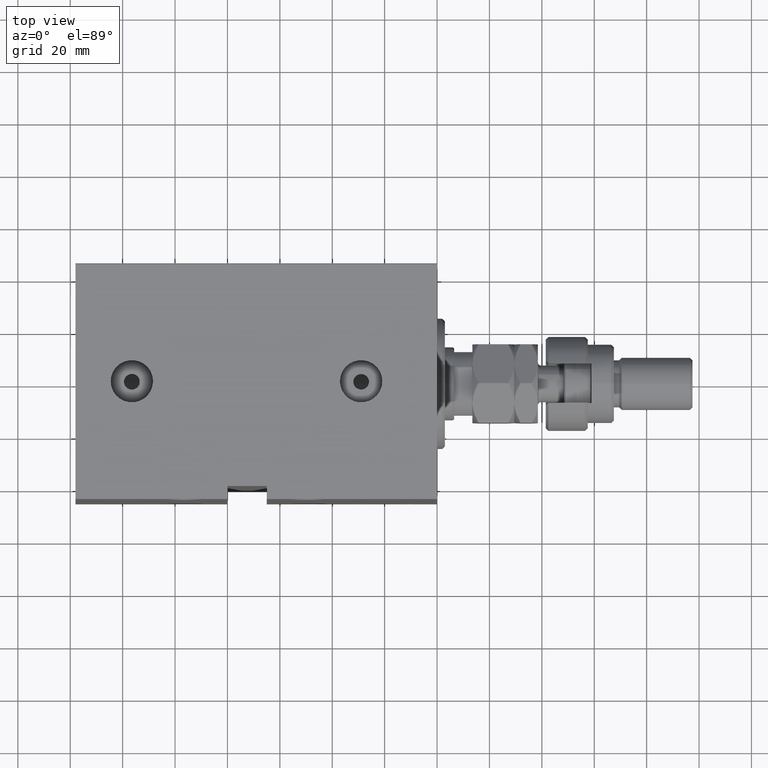
[diagram: clean part render]
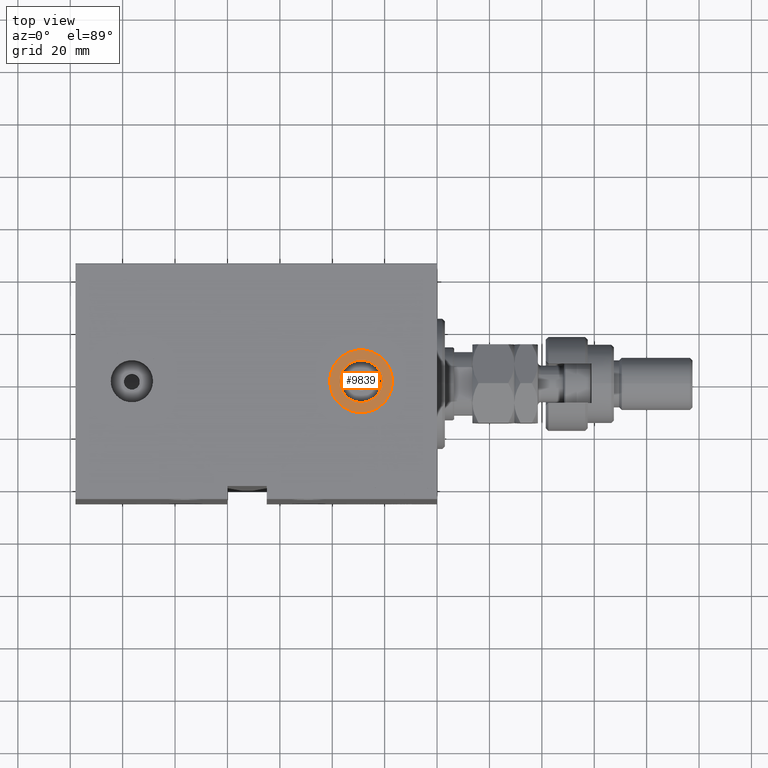
[diagram: same view with one face highlighted and labeled with its STEP entity id]
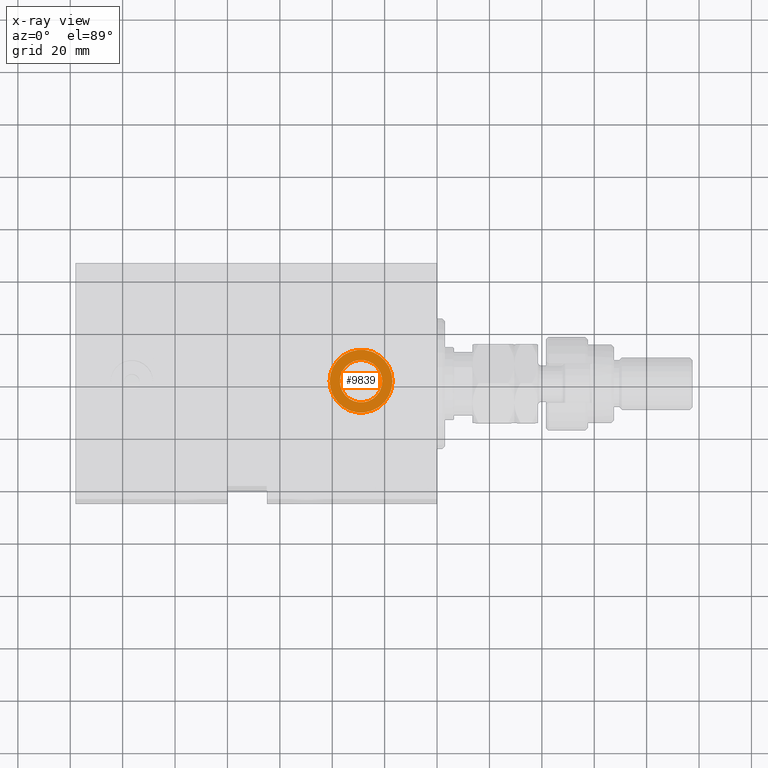
[diagram: x-ray of the same camera — body ghosted, the highlighted face saturated]
A machine part, top view. The second image highlights one B-rep face of the part: STEP entity #9839.
The next image is the same camera in x-ray: the body ghosted, the highlighted face saturated — about 0% of this face is hidden behind the body in this view.
In plain terms, the highlighted planar face has unit normal (0, 0, 1).
Its self-contained STEP definition (entity closure, byte-faithful):
#631 = AXIS2_PLACEMENT_3D ( 'NONE', #34391, #11951, #1426 ) ;
#1426 = DIRECTION ( 'NONE',  ( 1.000000000000000000, 0.000000000000000000, 0.000000000000000000 ) ) ;
#3957 = FACE_OUTER_BOUND ( 'NONE', #44099, .T. ) ;
#4660 = FACE_BOUND ( 'NONE', #24547, .T. ) ;
#4786 = ORIENTED_EDGE ( 'NONE', *, *, #37335, .T. ) ;
#6081 = EDGE_CURVE ( 'NONE', #11334, #30946, #40166, .T. ) ;
#6512 = EDGE_CURVE ( 'NONE', #41782, #7964, #18840, .T. ) ;
#7047 = CARTESIAN_POINT ( 'NONE',  ( 29.00000000000000000, -1.329954664915552316E-14, 57.39999999999999858 ) ) ;
#7964 = VERTEX_POINT ( 'NONE', #35895 ) ;
#8013 = CARTESIAN_POINT ( 'NONE',  ( 29.00000000000000000, -1.329954664915552316E-14, 57.39999999999999858 ) ) ;
#9177 = DIRECTION ( 'NONE',  ( 1.000000000000000000, 0.000000000000000000, 0.000000000000000000 ) ) ;
#9496 = CARTESIAN_POINT ( 'NONE',  ( 29.00000000000000000, -1.329954664915552316E-14, 57.39999999999999858 ) ) ;
#9839 = ADVANCED_FACE ( 'NONE', ( #4660, #3957 ), #44762, .T. ) ;
#11173 = AXIS2_PLACEMENT_3D ( 'NONE', #8013, #29989, #40952 ) ;
#11334 = VERTEX_POINT ( 'NONE', #17388 ) ;
#11951 = DIRECTION ( 'NONE',  ( 0.000000000000000000, 0.000000000000000000, 1.000000000000000000 ) ) ;
#13080 = DIRECTION ( 'NONE',  ( 1.000000000000000000, 0.000000000000000000, 0.000000000000000000 ) ) ;
#17388 = CARTESIAN_POINT ( 'NONE',  ( 20.91500000000000270, -1.230941971204488879E-14, 57.39999999999999858 ) ) ;
#18840 = CIRCLE ( 'NONE', #30297, 12.00000000000000000 ) ;
#20729 = DIRECTION ( 'NONE',  ( 0.000000000000000000, 0.000000000000000000, 1.000000000000000000 ) ) ;
#21625 = DIRECTION ( 'NONE',  ( 0.000000000000000000, 0.000000000000000000, 1.000000000000000000 ) ) ;
#23773 = CARTESIAN_POINT ( 'NONE',  ( 37.08500000000000085, -1.329954664915552316E-14, 57.39999999999999858 ) ) ;
#24547 = EDGE_LOOP ( 'NONE', ( #44887, #37792 ) ) ;
#24911 = AXIS2_PLACEMENT_3D ( 'NONE', #9496, #20729, #13080 ) ;
#28870 = CIRCLE ( 'NONE', #33433, 8.084999999999999076 ) ;
#29989 = DIRECTION ( 'NONE',  ( 0.000000000000000000, 0.000000000000000000, 1.000000000000000000 ) ) ;
#30297 = AXIS2_PLACEMENT_3D ( 'NONE', #7047, #21625, #36189 ) ;
#30946 = VERTEX_POINT ( 'NONE', #23773 ) ;
#31138 = CIRCLE ( 'NONE', #631, 12.00000000000000000 ) ;
#33433 = AXIS2_PLACEMENT_3D ( 'NONE', #34730, #34271, #9177 ) ;
#34271 = DIRECTION ( 'NONE',  ( 0.000000000000000000, 0.000000000000000000, 1.000000000000000000 ) ) ;
#34391 = CARTESIAN_POINT ( 'NONE',  ( 29.00000000000000000, -1.329954664915552316E-14, 57.39999999999999858 ) ) ;
#34730 = CARTESIAN_POINT ( 'NONE',  ( 29.00000000000000000, -1.329954664915552316E-14, 57.39999999999999858 ) ) ;
#35645 = ORIENTED_EDGE ( 'NONE', *, *, #6512, .T. ) ;
#35895 = CARTESIAN_POINT ( 'NONE',  ( 41.00000000000000000, -1.329954664915552316E-14, 57.39999999999999858 ) ) ;
#36189 = DIRECTION ( 'NONE',  ( 1.000000000000000000, 0.000000000000000000, 0.000000000000000000 ) ) ;
#36508 = CARTESIAN_POINT ( 'NONE',  ( 16.99999999999999645, -1.182997049017869981E-14, 57.39999999999999858 ) ) ;
#37335 = EDGE_CURVE ( 'NONE', #7964, #41782, #31138, .T. ) ;
#37792 = ORIENTED_EDGE ( 'NONE', *, *, #6081, .F. ) ;
#37932 = EDGE_CURVE ( 'NONE', #30946, #11334, #28870, .T. ) ;
#40166 = CIRCLE ( 'NONE', #24911, 8.084999999999999076 ) ;
#40952 = DIRECTION ( 'NONE',  ( 1.000000000000000000, 0.000000000000000000, -0.000000000000000000 ) ) ;
#41782 = VERTEX_POINT ( 'NONE', #36508 ) ;
#44099 = EDGE_LOOP ( 'NONE', ( #4786, #35645 ) ) ;
#44762 = PLANE ( 'NONE',  #11173 ) ;
#44887 = ORIENTED_EDGE ( 'NONE', *, *, #37932, .F. ) ;